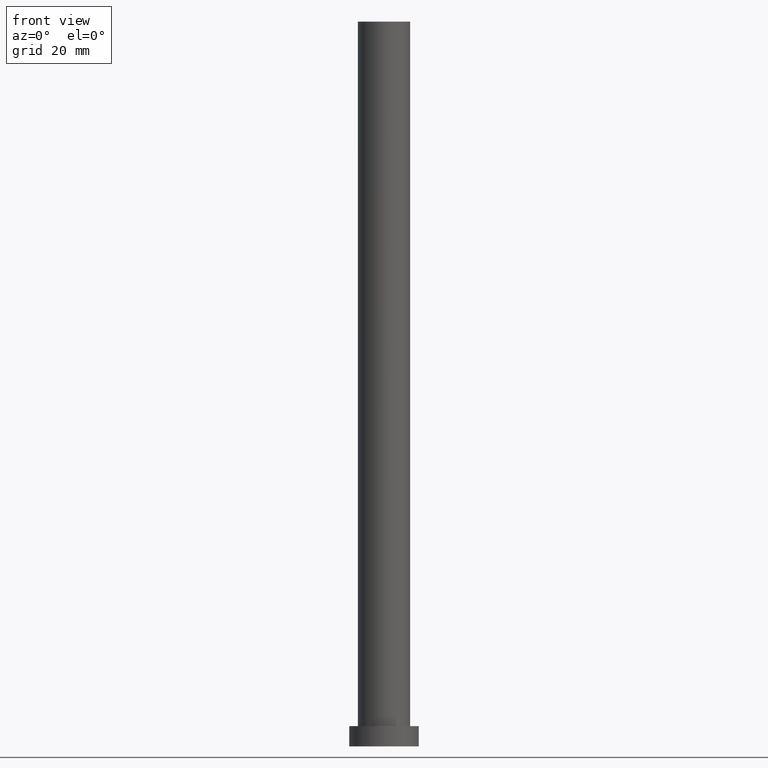
[diagram: clean part render]
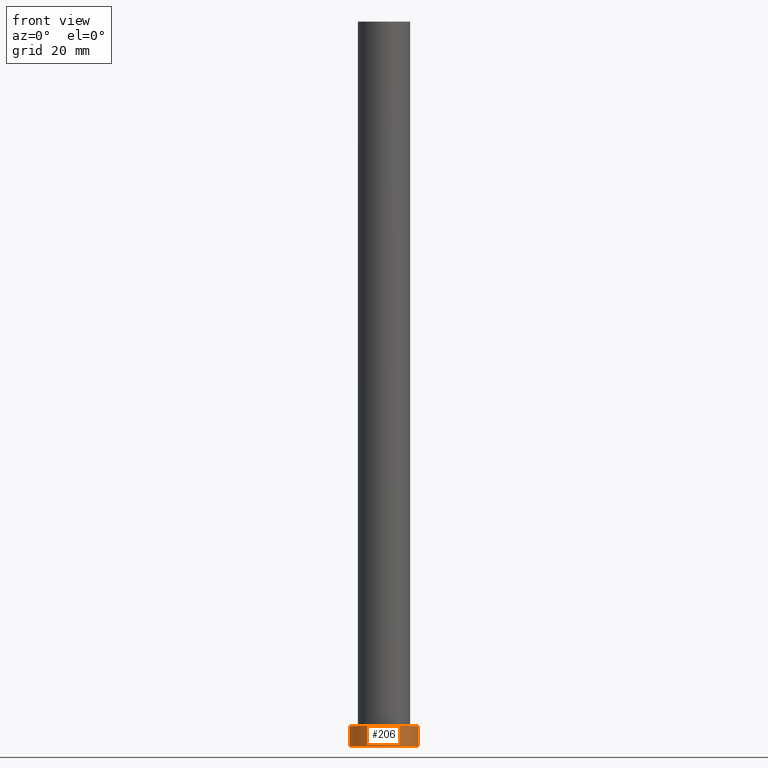
[diagram: same view with one face highlighted and labeled with its STEP entity id]
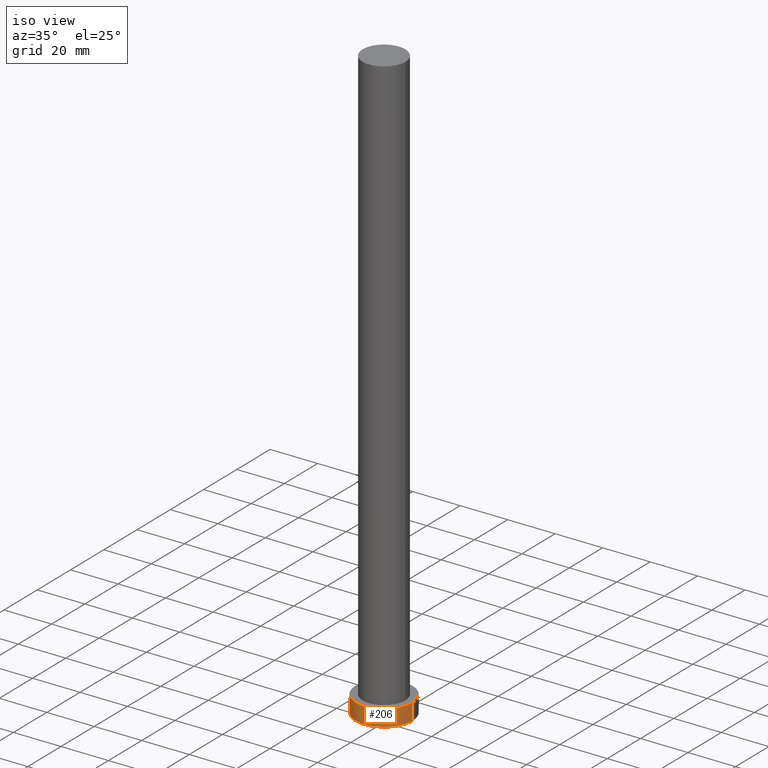
[diagram: same view with one face highlighted and labeled with its STEP entity id]
A machine part, front view. The second image highlights one B-rep face of the part: STEP entity #206.
A second angle (iso view) of the same face is appended — the face is thin or edge-on in the first view.
In plain terms, the highlighted cylindrical surface (edge-blend (fillet) strip) has radius 12 mm, axis along (-0, -0, -1).
Its self-contained STEP definition (entity closure, byte-faithful):
#8 = VECTOR ( 'NONE', #237, 1000.000000000000000 ) ;
#13 = CARTESIAN_POINT ( 'NONE',  ( -12.00000000000000178, 0.000000000000000000, 0.000000000000000000 ) ) ;
#14 = ORIENTED_EDGE ( 'NONE', *, *, #249, .T. ) ;
#16 = AXIS2_PLACEMENT_3D ( 'NONE', #47, #44, #86 ) ;
#26 = DIRECTION ( 'NONE',  ( 1.000000000000000000, 0.000000000000000000, 0.000000000000000000 ) ) ;
#39 = VECTOR ( 'NONE', #144, 1000.000000000000000 ) ;
#44 = DIRECTION ( 'NONE',  ( -0.000000000000000000, -0.000000000000000000, -1.000000000000000000 ) ) ;
#47 = CARTESIAN_POINT ( 'NONE',  ( 0.000000000000000000, 0.000000000000000000, 7.000000000000000000 ) ) ;
#58 = CARTESIAN_POINT ( 'NONE',  ( 0.000000000000000000, 0.000000000000000000, 7.000000000000000000 ) ) ;
#65 = VERTEX_POINT ( 'NONE', #137 ) ;
#66 = LINE ( 'NONE', #226, #39 ) ;
#77 = FACE_OUTER_BOUND ( 'NONE', #211, .T. ) ;
#86 = DIRECTION ( 'NONE',  ( -1.000000000000000000, 0.000000000000000000, 0.000000000000000000 ) ) ;
#87 = ORIENTED_EDGE ( 'NONE', *, *, #192, .T. ) ;
#101 = CIRCLE ( 'NONE', #115, 12.00000000000000178 ) ;
#110 = ORIENTED_EDGE ( 'NONE', *, *, #212, .F. ) ;
#114 = EDGE_CURVE ( 'NONE', #244, #193, #101, .T. ) ;
#115 = AXIS2_PLACEMENT_3D ( 'NONE', #58, #218, #195 ) ;
#116 = ORIENTED_EDGE ( 'NONE', *, *, #114, .F. ) ;
#124 = AXIS2_PLACEMENT_3D ( 'NONE', #163, #128, #26 ) ;
#128 = DIRECTION ( 'NONE',  ( 0.000000000000000000, 0.000000000000000000, 1.000000000000000000 ) ) ;
#137 = CARTESIAN_POINT ( 'NONE',  ( 12.00000000000000178, 1.469576158976824144E-15, 0.000000000000000000 ) ) ;
#144 = DIRECTION ( 'NONE',  ( -0.000000000000000000, -0.000000000000000000, -1.000000000000000000 ) ) ;
#163 = CARTESIAN_POINT ( 'NONE',  ( 0.000000000000000000, 0.000000000000000000, 0.000000000000000000 ) ) ;
#192 = EDGE_CURVE ( 'NONE', #244, #250, #241, .T. ) ;
#193 = VERTEX_POINT ( 'NONE', #233 ) ;
#195 = DIRECTION ( 'NONE',  ( 1.000000000000000000, 0.000000000000000000, 0.000000000000000000 ) ) ;
#198 = CARTESIAN_POINT ( 'NONE',  ( -12.00000000000000178, 0.000000000000000000, 7.000000000000000000 ) ) ;
#206 = ADVANCED_FACE ( 'NONE', ( #77 ), #228, .T. ) ;
#211 = EDGE_LOOP ( 'NONE', ( #110, #116, #87, #14 ) ) ;
#212 = EDGE_CURVE ( 'NONE', #193, #65, #66, .T. ) ;
#217 = CARTESIAN_POINT ( 'NONE',  ( -12.00000000000000178, 0.000000000000000000, 7.000000000000000000 ) ) ;
#218 = DIRECTION ( 'NONE',  ( 0.000000000000000000, 0.000000000000000000, 1.000000000000000000 ) ) ;
#226 = CARTESIAN_POINT ( 'NONE',  ( 12.00000000000000178, 1.469576158976824144E-15, 7.000000000000000000 ) ) ;
#228 = CYLINDRICAL_SURFACE ( 'NONE', #16, 12.00000000000000178 ) ;
#233 = CARTESIAN_POINT ( 'NONE',  ( 12.00000000000000178, 1.469576158976824144E-15, 7.000000000000000000 ) ) ;
#234 = CIRCLE ( 'NONE', #124, 12.00000000000000178 ) ;
#237 = DIRECTION ( 'NONE',  ( -0.000000000000000000, -0.000000000000000000, -1.000000000000000000 ) ) ;
#241 = LINE ( 'NONE', #217, #8 ) ;
#244 = VERTEX_POINT ( 'NONE', #198 ) ;
#249 = EDGE_CURVE ( 'NONE', #250, #65, #234, .T. ) ;
#250 = VERTEX_POINT ( 'NONE', #13 ) ;